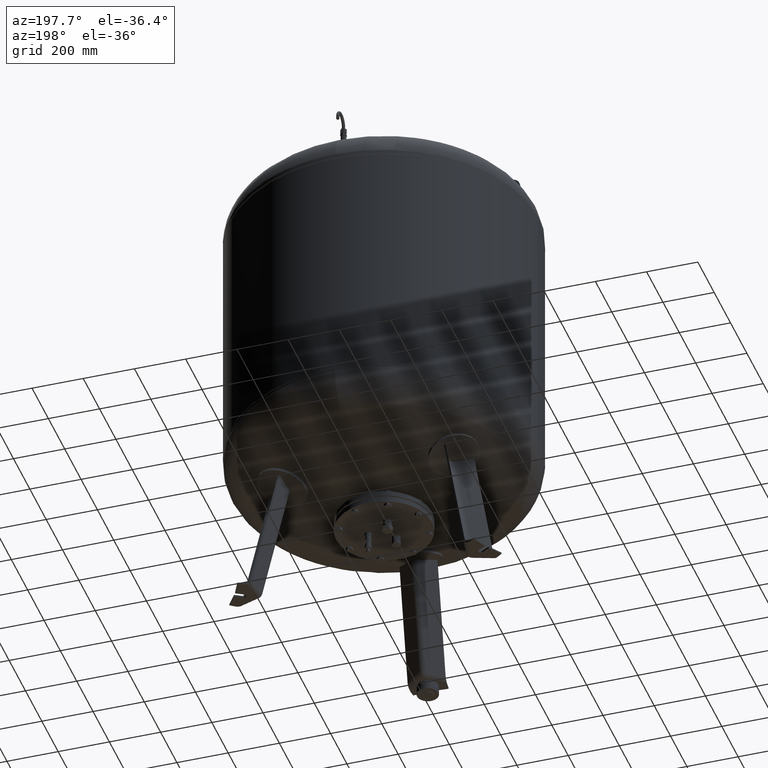
[diagram: clean part render]
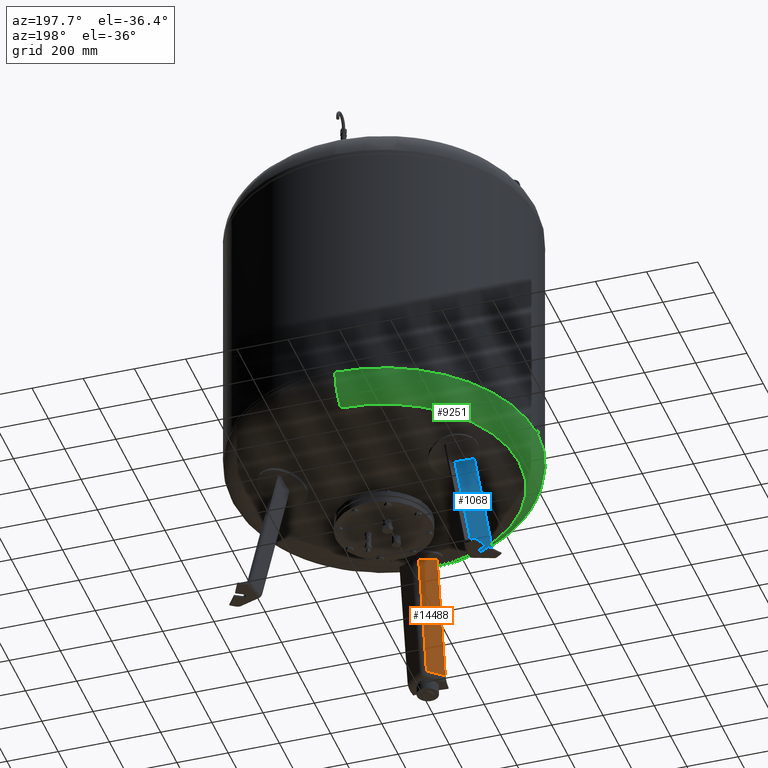
[diagram: same view with three faces highlighted in distinct colors, each labeled with its STEP entity id]
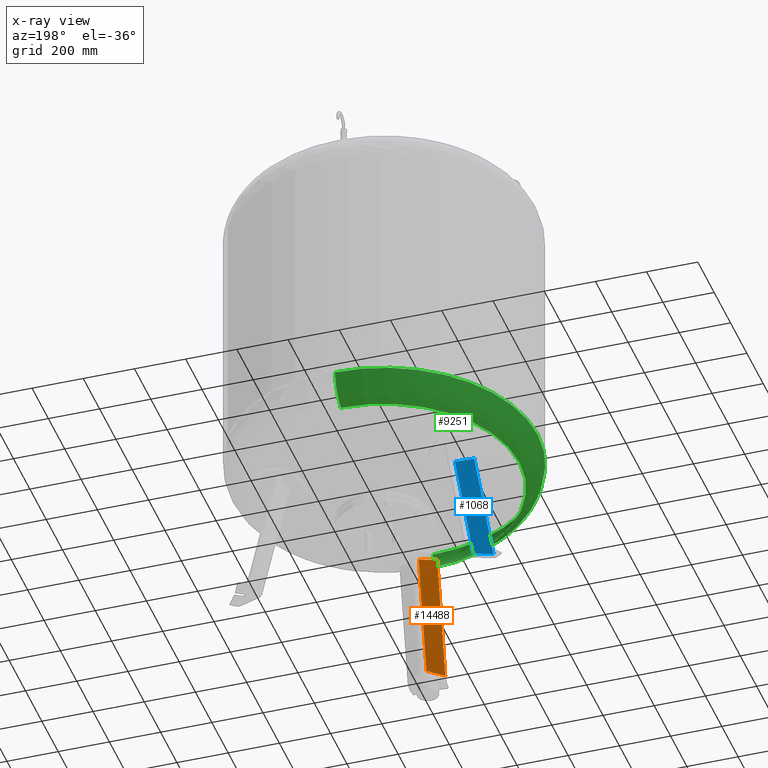
[diagram: x-ray of the same camera — body ghosted, the three highlighted faces saturated]
A machine part, auxiliary view with three faces highlighted in distinct colors.
The next image is the same camera in x-ray (body ghosted, the three faces saturated) — at least one of them is partly hidden behind the body in this view.
Their STEP definitions:

[orange] entity #14488 — the highlighted planar face has unit normal (-0.6455, 0.7471, -0.1588).
#13954=CARTESIAN_POINT('',(-73.500000000000000,-519.029946471096990,63.029948423057292));
#13955=VERTEX_POINT('',#13954);
#13963=CARTESIAN_POINT('',(-16.136450826554526,-469.470961811045530,63.029948423057292));
#13964=VERTEX_POINT('',#13963);
#13965=CARTESIAN_POINT('',(-73.500000000000000,-519.029946471096990,63.029948423057292));
#13966=DIRECTION('',(0.756707249513243,0.653753882232529,0.0));
#13967=VECTOR('',#13966,75.806792138366546);
#13968=LINE('',#13965,#13967);
#13969=EDGE_CURVE('',#13955,#13964,#13968,.T.);
#14248=CARTESIAN_POINT('',(-16.136450826554444,-374.263049545852250,510.947959126467540));
#14249=VERTEX_POINT('',#14248);
#14279=CARTESIAN_POINT('',(-73.499999999999886,-419.915519590274360,529.326665410275150));
#14280=VERTEX_POINT('',#14279);
#14281=CARTESIAN_POINT('',(41.213227367519892,-118.701576953983360,1480.169845689218200));
#14282=DIRECTION('',(0.645458033062181,-0.747104967402683,0.158802063077708));
#14283=DIRECTION('',(-5.092368E-017,-0.207911690817760,-0.978147600733805));
#14284=AXIS2_PLACEMENT_3D('',#14281,#14282,#14283);
#14285=CIRCLE('',#14284,1003.987906926445600);
#14286=EDGE_CURVE('',#14280,#14249,#14285,.T.);
#14409=CARTESIAN_POINT('',(-16.136450826554526,-469.470961811045530,63.029948423057292));
#14410=DIRECTION('',(1.784407E-016,0.207911690817760,0.978147600733805));
#14411=VECTOR('',#14410,457.924765513285020);
#14412=LINE('',#14409,#14411);
#14413=EDGE_CURVE('',#13964,#14249,#14412,.T.);
#14472=CARTESIAN_POINT('',(-73.500000000000000,-535.940357983691800,-16.527282742766886));
#14473=DIRECTION('',(-0.645458033062181,0.747104967402683,-0.158802063077709));
#14474=DIRECTION('',(-1.834170E-016,-0.207911690817760,-0.978147600733806));
#14475=AXIS2_PLACEMENT_3D('',#14472,#14473,#14474);
#14476=PLANE('',#14475);
#14477=ORIENTED_EDGE('',*,*,#14413,.F.);
#14478=ORIENTED_EDGE('',*,*,#13969,.F.);
#14479=CARTESIAN_POINT('',(-73.500000000000000,-519.029946471096990,63.029948423057292));
#14480=DIRECTION('',(2.384801E-016,0.207911690817760,0.978147600733806));
#14481=VECTOR('',#14480,476.714063028322530);
#14482=LINE('',#14479,#14481);
#14483=EDGE_CURVE('',#13955,#14280,#14482,.T.);
#14484=ORIENTED_EDGE('',*,*,#14483,.T.);
#14485=ORIENTED_EDGE('',*,*,#14286,.T.);
#14486=EDGE_LOOP('',(#14477,#14478,#14484,#14485));
#14487=FACE_OUTER_BOUND('',#14486,.T.);
#14488=ADVANCED_FACE('',(#14487),#14476,.T.);

[blue] entity #1068 — the highlighted planar face has unit normal (-0.3243, 0.9325, 0.1588).
#512=CARTESIAN_POINT('',(-420.404321888330290,224.087779953756810,27.029948423057284));
#513=VERTEX_POINT('',#512);
#522=CARTESIAN_POINT('',(-491.178961512120280,199.476382368576110,27.029948423057281));
#523=VERTEX_POINT('',#522);
#531=CARTESIAN_POINT('',(-491.178961512120280,199.476382368576110,27.029948423057281));
#532=DIRECTION('',(0.944521094592692,0.328450760190052,4.741265E-017));
#533=VECTOR('',#532,74.931772333057651);
#534=LINE('',#531,#533);
#535=EDGE_CURVE('',#523,#513,#534,.T.);
#851=CARTESIAN_POINT('',(-331.808702377670270,172.937075180255530,508.320240019970470));
#852=VERTEX_POINT('',#851);
#882=CARTESIAN_POINT('',(-399.179928245355650,146.360715746824160,526.809077370483350));
#883=VERTEX_POINT('',#882);
#884=CARTESIAN_POINT('',(-77.536866522000253,96.546967477290849,1476.144501634031000));
#885=DIRECTION('',(0.324282864533177,-0.932535537409927,-0.158802063077709));
#886=DIRECTION('',(0.180056805991956,-0.103955845408880,0.978147600733805));
#887=AXIS2_PLACEMENT_3D('',#884,#885,#886);
#888=CIRCLE('',#887,1003.580298946269700);
#889=EDGE_CURVE('',#883,#852,#888,.T.);
#1043=CARTESIAN_POINT('',(-420.404321888330290,224.087779953756810,27.029948423057284));
#1044=DIRECTION('',(0.180056805991956,-0.103955845408880,0.978147600733806));
#1045=VECTOR('',#1044,492.042603013951630);
#1046=LINE('',#1043,#1045);
#1047=EDGE_CURVE('',#513,#852,#1046,.T.);
#1052=CARTESIAN_POINT('',(-500.117346623909440,204.636961418988140,-21.527282742766886));
#1053=DIRECTION('',(-0.324282864533177,0.932535537409927,0.158802063077709));
#1054=DIRECTION('',(0.180056805991956,-0.103955845408880,0.978147600733806));
#1055=AXIS2_PLACEMENT_3D('',#1052,#1053,#1054);
#1056=PLANE('',#1055);
#1057=ORIENTED_EDGE('',*,*,#889,.T.);
#1058=ORIENTED_EDGE('',*,*,#1047,.F.);
#1059=ORIENTED_EDGE('',*,*,#535,.F.);
#1060=CARTESIAN_POINT('',(-491.178961512120280,199.476382368576110,27.029948423057281));
#1061=DIRECTION('',(0.180056805991956,-0.103955845408880,0.978147600733806));
#1062=VECTOR('',#1061,510.944491989237750);
#1063=LINE('',#1060,#1062);
#1064=EDGE_CURVE('',#523,#883,#1063,.T.);
#1065=ORIENTED_EDGE('',*,*,#1064,.T.);
#1066=EDGE_LOOP('',(#1057,#1058,#1059,#1065));
#1067=FACE_OUTER_BOUND('',#1066,.T.);
#1068=ADVANCED_FACE('',(#1067),#1056,.T.);

[green] entity #9251 — the highlighted toroidal blend (fillet) surface has major radius 473 mm and minor (blend) radius 127 mm.
#9156=CARTESIAN_POINT('',(-600.0,-4.336858E-014,696.087542566272190));
#9157=VERTEX_POINT('',#9156);
#9181=CARTESIAN_POINT('',(-1.445307E-013,600.0,696.087542566272420));
#9182=VERTEX_POINT('',#9181);
#9190=CARTESIAN_POINT('',(-3.551733E-014,-4.336858E-014,696.087542566272300));
#9191=DIRECTION('',(0.0,0.0,1.0));
#9192=DIRECTION('',(-1.0,0.0,0.0));
#9193=AXIS2_PLACEMENT_3D('',#9190,#9191,#9192);
#9194=CIRCLE('',#9193,600.0);
#9195=EDGE_CURVE('',#9182,#9157,#9194,.T.);
#9200=CARTESIAN_POINT('',(-7.105427E-014,-4.336858E-014,696.087542566272300));
#9201=DIRECTION('',(-1.504413E-016,-1.836970E-016,1.0));
#9202=DIRECTION('',(0.0,-1.0,0.0));
#9203=AXIS2_PLACEMENT_3D('',#9200,#9201,#9202);
#9204=TOROIDAL_SURFACE('',#9203,472.999999999999890,127.000000000000010);
#9205=CARTESIAN_POINT('',(-7.105427E-014,-600.0,696.087542566272190));
#9206=VERTEX_POINT('',#9205);
#9207=CARTESIAN_POINT('',(-5.387807E-014,-528.621296296296240,581.915429516194880));
#9208=VERTEX_POINT('',#9207);
#9209=CARTESIAN_POINT('',(-7.105427E-014,-472.999999999999940,696.087542566272190));
#9210=DIRECTION('',(1.0,0.0,0.0));
#9211=DIRECTION('',(0.0,-1.0,0.0));
#9212=AXIS2_PLACEMENT_3D('',#9209,#9210,#9211);
#9213=CIRCLE('',#9212,127.000000000000010);
#9214=EDGE_CURVE('',#9206,#9208,#9213,.T.);
#9215=ORIENTED_EDGE('',*,*,#9214,.F.);
#9216=CARTESIAN_POINT('',(-3.551733E-014,-4.336858E-014,696.087542566272300));
#9217=DIRECTION('',(0.0,0.0,1.0));
#9218=DIRECTION('',(-1.0,0.0,0.0));
#9219=AXIS2_PLACEMENT_3D('',#9216,#9217,#9218);
#9220=CIRCLE('',#9219,600.0);
#9221=EDGE_CURVE('',#9157,#9206,#9220,.T.);
#9222=ORIENTED_EDGE('',*,*,#9221,.F.);
#9223=ORIENTED_EDGE('',*,*,#9195,.F.);
#9224=CARTESIAN_POINT('',(-1.186134E-013,528.621296296296240,581.915429516195100));
#9225=VERTEX_POINT('',#9224);
#9226=CARTESIAN_POINT('',(-1.289782E-013,472.999999999999830,696.087542566272420));
#9227=DIRECTION('',(-1.0,0.0,0.0));
#9228=DIRECTION('',(0.0,1.0,0.0));
#9229=AXIS2_PLACEMENT_3D('',#9226,#9227,#9228);
#9230=CIRCLE('',#9229,127.000000000000010);
#9231=EDGE_CURVE('',#9182,#9225,#9230,.T.);
#9232=ORIENTED_EDGE('',*,*,#9231,.T.);
#9233=CARTESIAN_POINT('',(-528.621296296296240,-2.239550E-014,581.915429516194990));
#9234=VERTEX_POINT('',#9233);
#9235=CARTESIAN_POINT('',(-1.834112E-014,-2.239550E-014,581.915429516194990));
#9236=DIRECTION('',(0.0,0.0,1.0));
#9237=DIRECTION('',(-1.0,0.0,0.0));
#9238=AXIS2_PLACEMENT_3D('',#9235,#9236,#9237);
#9239=CIRCLE('',#9238,528.621296296296240);
#9240=EDGE_CURVE('',#9225,#9234,#9239,.T.);
#9241=ORIENTED_EDGE('',*,*,#9240,.T.);
#9242=CARTESIAN_POINT('',(-1.834112E-014,-2.239550E-014,581.915429516194990));
#9243=DIRECTION('',(0.0,0.0,1.0));
#9244=DIRECTION('',(-1.0,0.0,0.0));
#9245=AXIS2_PLACEMENT_3D('',#9242,#9243,#9244);
#9246=CIRCLE('',#9245,528.621296296296240);
#9247=EDGE_CURVE('',#9234,#9208,#9246,.T.);
#9248=ORIENTED_EDGE('',*,*,#9247,.T.);
#9249=EDGE_LOOP('',(#9215,#9222,#9223,#9232,#9241,#9248));
#9250=FACE_OUTER_BOUND('',#9249,.T.);
#9251=ADVANCED_FACE('',(#9250),#9204,.T.);